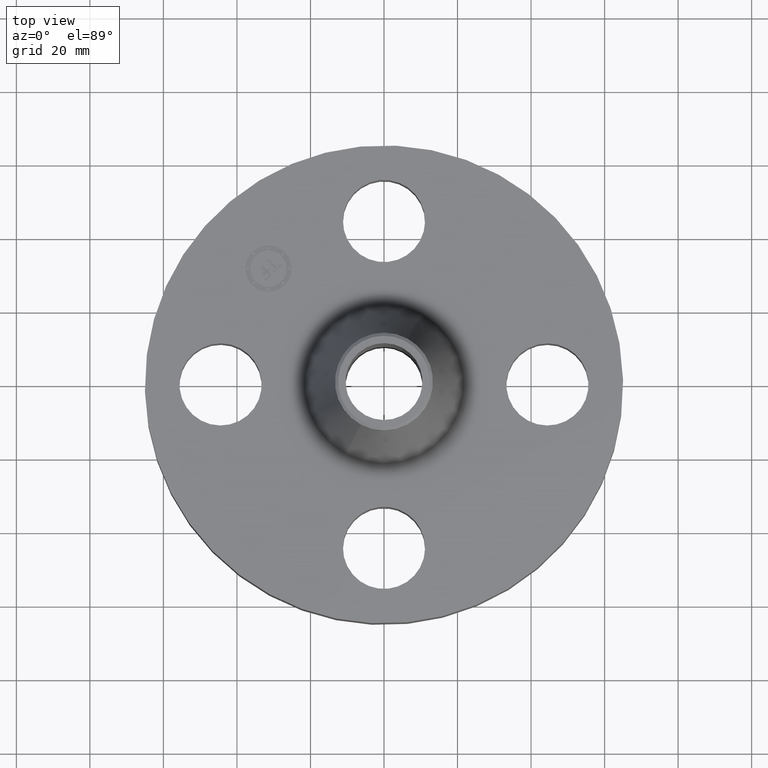
[diagram: clean part render]
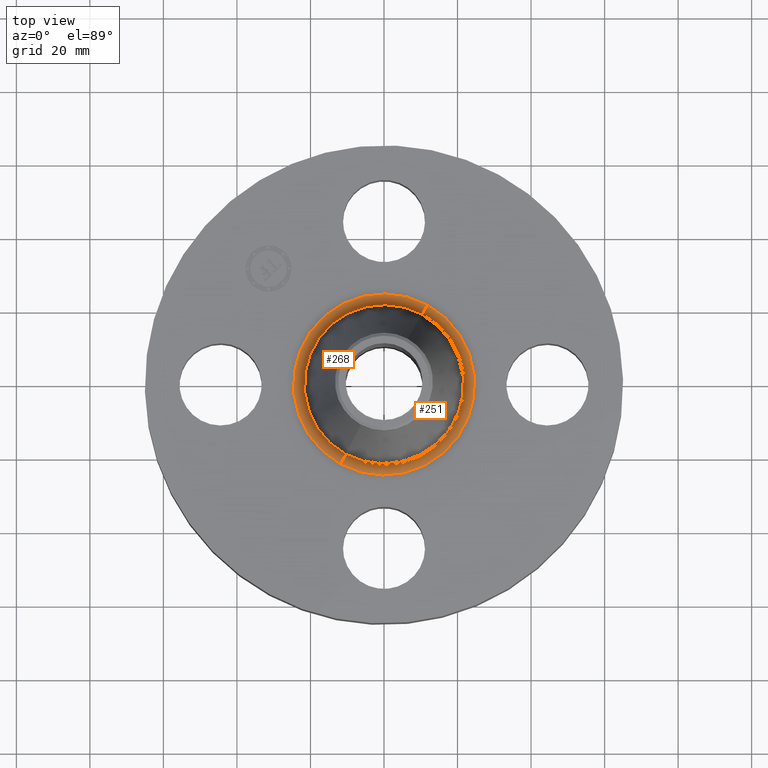
[diagram: same view with one multi-face feature highlighted, each face labeled with its STEP entity id]
A machine part, top view. The highlighted faces form ONE feature: a constant-radius fillet chain: 2 tangent blend faces with common blend radius 3.048 mm. The faces share edges in the B-rep.
Their STEP definitions:
[1] entity #251 (Torus):
#215=AXIS2_PLACEMENT_3D('Torus Axis2P3D',#212,#213,#214) ;
#219=AXIS2_PLACEMENT_3D('Circle Axis2P3D',#217,#218,$) ;
#228=AXIS2_PLACEMENT_3D('Circle Axis2P3D',#226,#227,$) ;
#235=AXIS2_PLACEMENT_3D('Circle Axis2P3D',#233,#234,$) ;
#242=AXIS2_PLACEMENT_3D('Circle Axis2P3D',#240,#241,$) ;
#212=CARTESIAN_POINT('Axis2P3D Location',(0.,0.,1.12)) ;
#217=CARTESIAN_POINT('Axis2P3D Location',(0.,0.,1.)) ;
#221=CARTESIAN_POINT('Vertex',(0.465062729832,0.851291616784,1.)) ;
#223=CARTESIAN_POINT('Vertex',(-0.465062729832,-0.851291616784,1.)) ;
#226=CARTESIAN_POINT('Axis2P3D Location',(0.465062729832,0.851291616784,1.12)) ;
#230=CARTESIAN_POINT('Vertex',(0.40906102153,0.748781177343,1.09251512284)) ;
#233=CARTESIAN_POINT('Axis2P3D Location',(0.,0.,1.09251512284)) ;
#237=CARTESIAN_POINT('Vertex',(-0.40906102153,-0.748781177343,1.09251512284)) ;
#240=CARTESIAN_POINT('Axis2P3D Location',(-0.465062729832,-0.851291616784,1.12)) ;
#213=DIRECTION('Axis2P3D Direction',(0.,0.,-0.0393700787402)) ;
#214=DIRECTION('Axis2P3D XDirection',(-0.0188750212049,-0.0345504945626,0.)) ;
#218=DIRECTION('Axis2P3D Direction',(0.,0.,-0.0393700787402)) ;
#227=DIRECTION('Axis2P3D Direction',(-0.0345504945626,0.0188750212049,0.)) ;
#234=DIRECTION('Axis2P3D Direction',(0.,0.,-0.0393700787402)) ;
#241=DIRECTION('Axis2P3D Direction',(0.0345504945626,-0.0188750212049,0.)) ;
#246=ORIENTED_EDGE('',*,*,#225,.F.) ;
#247=ORIENTED_EDGE('',*,*,#232,.T.) ;
#248=ORIENTED_EDGE('',*,*,#239,.T.) ;
#249=ORIENTED_EDGE('',*,*,#244,.F.) ;
#251=ADVANCED_FACE('PartBody',(#250),#216,.F.) ;
#220=CIRCLE('generated circle',#219,0.970041627708) ;
#229=CIRCLE('generated circle',#228,0.12) ;
#236=CIRCLE('generated circle',#235,0.853231604477) ;
#243=CIRCLE('generated circle',#242,0.12) ;
#216=TOROIDAL_SURFACE('homeo Torus',#215,0.970041627708,0.12) ;
#225=EDGE_CURVE('',#222,#224,#220,.T.) ;
#232=EDGE_CURVE('',#222,#231,#229,.T.) ;
#239=EDGE_CURVE('',#231,#238,#236,.T.) ;
#244=EDGE_CURVE('',#224,#238,#243,.T.) ;
#245=EDGE_LOOP('',(#246,#247,#248,#249)) ;
#250=FACE_OUTER_BOUND('',#245,.T.) ;
#222=VERTEX_POINT('',#221) ;
#224=VERTEX_POINT('',#223) ;
#231=VERTEX_POINT('',#230) ;
#238=VERTEX_POINT('',#237) ;
[2] entity #268 (Torus):
#215=AXIS2_PLACEMENT_3D('Torus Axis2P3D',#212,#213,#214) ;
#228=AXIS2_PLACEMENT_3D('Circle Axis2P3D',#226,#227,$) ;
#242=AXIS2_PLACEMENT_3D('Circle Axis2P3D',#240,#241,$) ;
#254=AXIS2_PLACEMENT_3D('Circle Axis2P3D',#252,#253,$) ;
#259=AXIS2_PLACEMENT_3D('Circle Axis2P3D',#257,#258,$) ;
#212=CARTESIAN_POINT('Axis2P3D Location',(0.,0.,1.12)) ;
#221=CARTESIAN_POINT('Vertex',(0.465062729832,0.851291616784,1.)) ;
#223=CARTESIAN_POINT('Vertex',(-0.465062729832,-0.851291616784,1.)) ;
#226=CARTESIAN_POINT('Axis2P3D Location',(0.465062729832,0.851291616784,1.12)) ;
#230=CARTESIAN_POINT('Vertex',(0.40906102153,0.748781177343,1.09251512284)) ;
#237=CARTESIAN_POINT('Vertex',(-0.40906102153,-0.748781177343,1.09251512284)) ;
#240=CARTESIAN_POINT('Axis2P3D Location',(-0.465062729832,-0.851291616784,1.12)) ;
#252=CARTESIAN_POINT('Axis2P3D Location',(0.,0.,1.)) ;
#257=CARTESIAN_POINT('Axis2P3D Location',(0.,0.,1.09251512284)) ;
#213=DIRECTION('Axis2P3D Direction',(0.,0.,-0.0393700787402)) ;
#214=DIRECTION('Axis2P3D XDirection',(-0.0188750212049,-0.0345504945626,0.)) ;
#227=DIRECTION('Axis2P3D Direction',(-0.0345504945626,0.0188750212049,0.)) ;
#241=DIRECTION('Axis2P3D Direction',(0.0345504945626,-0.0188750212049,0.)) ;
#253=DIRECTION('Axis2P3D Direction',(0.,0.,-0.0393700787402)) ;
#258=DIRECTION('Axis2P3D Direction',(0.,0.,-0.0393700787402)) ;
#263=ORIENTED_EDGE('',*,*,#256,.F.) ;
#264=ORIENTED_EDGE('',*,*,#244,.T.) ;
#265=ORIENTED_EDGE('',*,*,#261,.T.) ;
#266=ORIENTED_EDGE('',*,*,#232,.F.) ;
#268=ADVANCED_FACE('PartBody',(#267),#216,.F.) ;
#229=CIRCLE('generated circle',#228,0.12) ;
#243=CIRCLE('generated circle',#242,0.12) ;
#255=CIRCLE('generated circle',#254,0.970041627708) ;
#260=CIRCLE('generated circle',#259,0.853231604477) ;
#216=TOROIDAL_SURFACE('homeo Torus',#215,0.970041627708,0.12) ;
#232=EDGE_CURVE('',#222,#231,#229,.T.) ;
#244=EDGE_CURVE('',#224,#238,#243,.T.) ;
#256=EDGE_CURVE('',#224,#222,#255,.T.) ;
#261=EDGE_CURVE('',#238,#231,#260,.T.) ;
#262=EDGE_LOOP('',(#263,#264,#265,#266)) ;
#267=FACE_OUTER_BOUND('',#262,.T.) ;
#222=VERTEX_POINT('',#221) ;
#224=VERTEX_POINT('',#223) ;
#231=VERTEX_POINT('',#230) ;
#238=VERTEX_POINT('',#237) ;